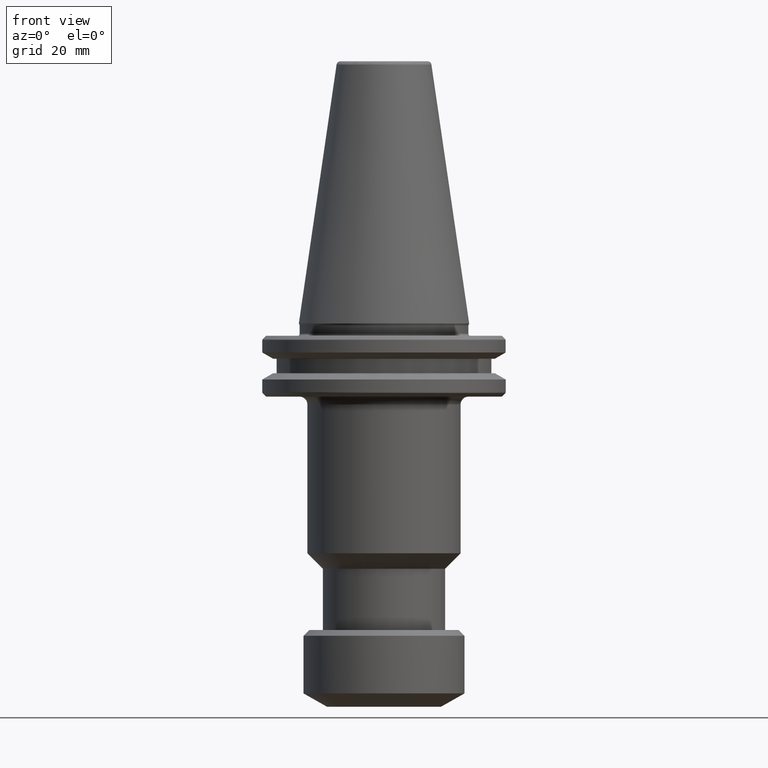
[diagram: clean part render]
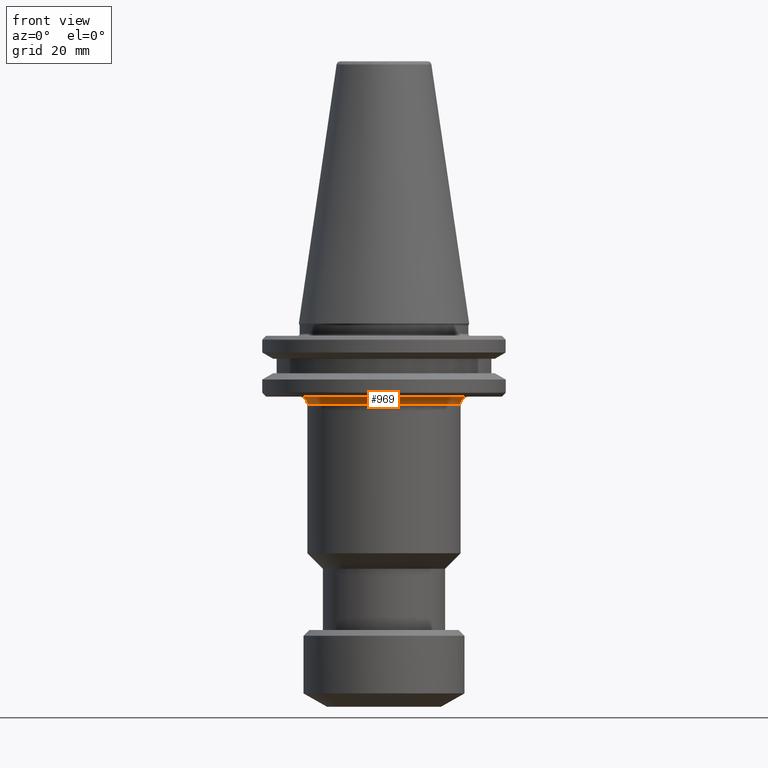
[diagram: same view with one face highlighted and labeled with its STEP entity id]
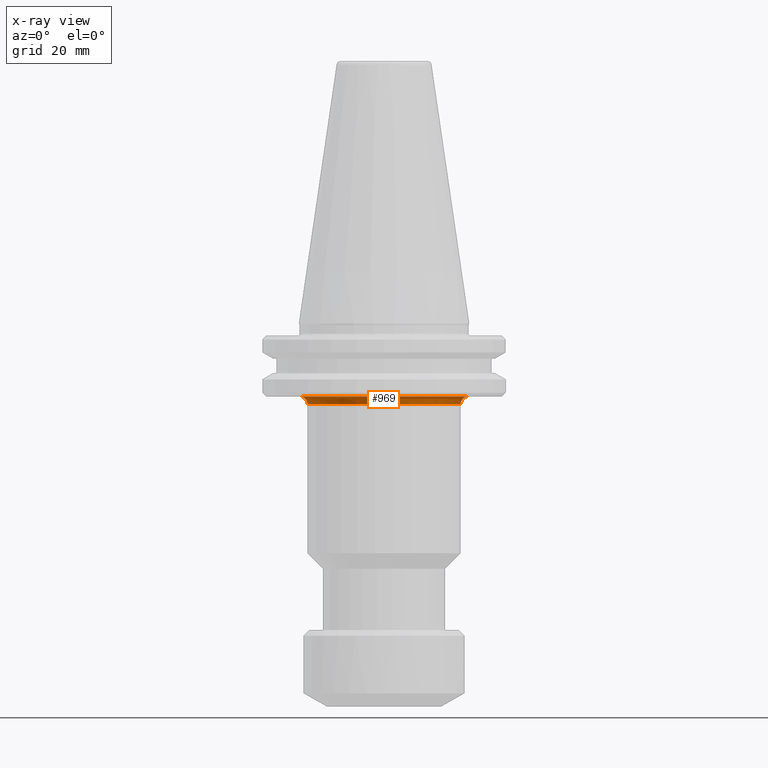
[diagram: x-ray of the same camera — body ghosted, the highlighted face saturated]
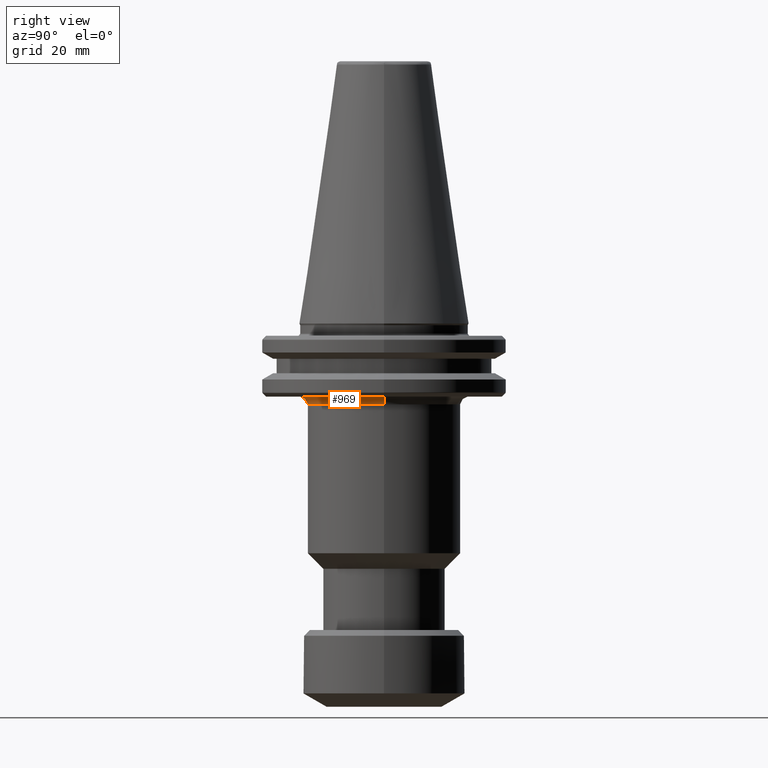
[diagram: same view with one face highlighted and labeled with its STEP entity id]
A machine part, front view. The second image highlights one B-rep face of the part: STEP entity #969.
The next image is the same camera in x-ray: the body ghosted, the highlighted face saturated — about 0% of this face is hidden behind the body in this view.
A second angle (right view) of the same face is appended — the face is thin or edge-on in the first view.
In plain terms, the highlighted face is a freeform B-spline surface patch.
Its self-contained STEP definition (entity closure, byte-faithful):
#5 = EDGE_LOOP ( 'NONE', ( #1045, #1409, #1155, #1324 ) ) ;
#39 = CARTESIAN_POINT ( 'NONE',  ( 22.02828427024736200, -44.05656854049474400, -19.09999999997586400 ) ) ;
#90 = CARTESIAN_POINT ( 'NONE',  ( -20.00000000000000000, -40.00000000000000000, -21.10000000000000100 ) ) ;
#91 = EDGE_CURVE ( 'NONE', #115, #121, #1064, .T. ) ;
#98 = CARTESIAN_POINT ( 'NONE',  ( -22.00942808941579500, -44.01885617883159100, -19.09999999999195800 ) ) ;
#102 = CARTESIAN_POINT ( 'NONE',  ( 21.95222492916193600, 0.0000000000000000000, -19.10057069578858000 ) ) ;
#115 = VERTEX_POINT ( 'NONE', #1562 ) ;
#121 = VERTEX_POINT ( 'NONE', #158 ) ;
#141 =( BOUNDED_SURFACE ( )  B_SPLINE_SURFACE ( 3, 3, ( 
 ( #1073, #39, #489, #1507 ),
 ( #829, #428, #588, #1221 ),
 ( #715, #448, #98, #303 ),
 ( #308, #1458, #1216, #726 ),
 ( #842, #1210, #1388, #363 ),
 ( #183, #1361, #1246, #1604 ),
 ( #495, #430, #90, #579 ) ),
 .UNSPECIFIED., .F., .F., .T. ) 
 B_SPLINE_SURFACE_WITH_KNOTS ( ( 4, 3, 4 ),
 ( 4, 4 ),
 ( 0.05440428619309657700, 0.06314145705598811500, 0.9368585433451420700 ),
 ( 0.0000000000000000000, 1.000000000000000000 ),
 .UNSPECIFIED. ) 
 GEOMETRIC_REPRESENTATION_ITEM ( )  RATIONAL_B_SPLINE_SURFACE ( (
 ( 0.9565783021300861000, 0.3188594340433620300, 0.3188594340433620300, 0.9565783021300861000),
 ( 0.9565783021300861000, 0.3188594340433620300, 0.3188594340433620300, 0.9565783021300861000),
 ( 0.9565783021300861000, 0.3188594340433620300, 0.3188594340433620300, 0.9565783021300861000),
 ( 0.9565783021300861000, 0.3188594340433620300, 0.3188594340433620300, 0.9565783021300861000),
 ( 0.7697947703221902400, 0.2565982567740640000, 0.2565982567740640000, 0.7697947703221902400),
 ( 0.7697947704079440800, 0.2565982568026480300, 0.2565982568026480300, 0.7697947704079440800),
 ( 0.9565783023873469800, 0.3188594341291150500, 0.3188594341291150500, 0.9565783023873469800) ) ) 
 REPRESENTATION_ITEM ( '' )  SURFACE ( )  );
#158 = CARTESIAN_POINT ( 'NONE',  ( -21.95222492916193600, 0.0000000000000000000, -19.10057069578858300 ) ) ;
#183 = CARTESIAN_POINT ( 'NONE',  ( 20.00000000000000000, 0.0000000000000000000, -19.92842712600000300 ) ) ;
#190 = CIRCLE ( 'NONE', #1348, 20.00000000000000000 ) ;
#250 = EDGE_CURVE ( 'NONE', #1028, #317, #190, .T. ) ;
#303 = CARTESIAN_POINT ( 'NONE',  ( -22.00942808941579500, 0.0000000000000000000, -19.09999999999195800 ) ) ;
#308 = CARTESIAN_POINT ( 'NONE',  ( 21.99999999900000700, 0.0000000000000000000, -19.10000000000000100 ) ) ;
#317 = VERTEX_POINT ( 'NONE', #1343 ) ;
#334 = CARTESIAN_POINT ( 'NONE',  ( -20.00000000000000000, 6.123233995736766300E-016, -21.10000000000000500 ) ) ;
#363 = CARTESIAN_POINT ( 'NONE',  ( -20.82842712400000100, 0.0000000000000000000, -19.10000000100000200 ) ) ;
#417 = DIRECTION ( 'NONE',  ( -0.0000000000000000000, -0.0000000000000000000, -1.000000000000000000 ) ) ;
#428 = CARTESIAN_POINT ( 'NONE',  ( 22.01885617983157700, -44.03771235966316800, -19.09999999998391500 ) ) ;
#430 = CARTESIAN_POINT ( 'NONE',  ( 20.00000000000000000, -40.00000000000000000, -21.10000000000000100 ) ) ;
#448 = CARTESIAN_POINT ( 'NONE',  ( 22.00942808941579500, -44.01885617883159100, -19.09999999999195800 ) ) ;
#455 = CARTESIAN_POINT ( 'NONE',  ( -21.95222492916193600, 0.0000000000000000000, -19.10057069578858300 ) ) ;
#489 = CARTESIAN_POINT ( 'NONE',  ( -22.02828427024736200, -44.05656854049474400, -19.09999999997586400 ) ) ;
#495 = CARTESIAN_POINT ( 'NONE',  ( 20.00000000000000000, 0.0000000000000000000, -21.10000000000000100 ) ) ;
#502 = AXIS2_PLACEMENT_3D ( 'NONE', #594, #1478, #720 ) ;
#531 = EDGE_CURVE ( 'NONE', #121, #317, #558, .T. ) ;
#558 =( BOUNDED_CURVE ( )  B_SPLINE_CURVE ( 3, ( #455, #1634, #627, #334 ),
 .UNSPECIFIED., .F., .F. ) 
 B_SPLINE_CURVE_WITH_KNOTS ( ( 4, 4 ),
 ( 0.07782887836482059500, 0.9368585433451411800 ),
 .UNSPECIFIED. ) 
 CURVE ( )  GEOMETRIC_REPRESENTATION_ITEM ( )  RATIONAL_B_SPLINE_CURVE ( ( 0.9473170033646294300, 0.7698475525910974900, 0.7729346522653359800, 0.9565783023873459800 ) ) 
 REPRESENTATION_ITEM ( '' )  );
#579 = CARTESIAN_POINT ( 'NONE',  ( -20.00000000000000000, 0.0000000000000000000, -21.10000000000000100 ) ) ;
#588 = CARTESIAN_POINT ( 'NONE',  ( -22.01885617983157700, -44.03771235966316800, -19.09999999998391500 ) ) ;
#594 = CARTESIAN_POINT ( 'NONE',  ( 0.0000000000000000000, 8.988438789245968400E-020, -19.10057069578858300 ) ) ;
#627 = CARTESIAN_POINT ( 'NONE',  ( -19.99999999999999300, 0.0000000000000000000, -19.95280084384703700 ) ) ;
#649 =( BOUNDED_CURVE ( )  B_SPLINE_CURVE ( 3, ( #762, #879, #1269, #102 ),
 .UNSPECIFIED., .F., .T. ) 
 B_SPLINE_CURVE_WITH_KNOTS ( ( 4, 4 ),
 ( 0.05440428619309588300, 0.9134339511734154100 ),
 .UNSPECIFIED. ) 
 CURVE ( )  GEOMETRIC_REPRESENTATION_ITEM ( )  RATIONAL_B_SPLINE_CURVE ( ( 0.9565783023873459800, 0.7729346522653360900, 0.7698475525910973800, 0.9473170033646286500 ) ) 
 REPRESENTATION_ITEM ( '' )  );
#715 = CARTESIAN_POINT ( 'NONE',  ( 22.00942808941579500, 0.0000000000000000000, -19.09999999999195800 ) ) ;
#720 = DIRECTION ( 'NONE',  ( 0.0000000000000000000, 1.000000000000000000, 1.580453445219911900E-016 ) ) ;
#726 = CARTESIAN_POINT ( 'NONE',  ( -21.99999999900000700, 0.0000000000000000000, -19.10000000000000100 ) ) ;
#762 = CARTESIAN_POINT ( 'NONE',  ( 20.00000000000000000, 0.0000000000000000000, -21.10000000000000100 ) ) ;
#829 = CARTESIAN_POINT ( 'NONE',  ( 22.01885617983158700, 0.0000000000000000000, -19.09999999998390400 ) ) ;
#842 = CARTESIAN_POINT ( 'NONE',  ( 20.82842712400000100, 0.0000000000000000000, -19.10000000100000200 ) ) ;
#879 = CARTESIAN_POINT ( 'NONE',  ( 19.99999999999999300, 0.0000000000000000000, -19.95280084384704000 ) ) ;
#969 = ADVANCED_FACE ( 'NONE', ( #1476 ), #141, .F. ) ;
#1028 = VERTEX_POINT ( 'NONE', #1067 ) ;
#1039 = CARTESIAN_POINT ( 'NONE',  ( 0.0000000000000000000, 0.0000000000000000000, -21.10000000000000100 ) ) ;
#1045 = ORIENTED_EDGE ( 'NONE', *, *, #1247, .T. ) ;
#1064 = CIRCLE ( 'NONE', #502, 21.95222492916176200 ) ;
#1067 = CARTESIAN_POINT ( 'NONE',  ( 20.00000000000000000, 0.0000000000000000000, -21.10000000000000100 ) ) ;
#1073 = CARTESIAN_POINT ( 'NONE',  ( 22.02828427024737200, 0.0000000000000000000, -19.09999999997585700 ) ) ;
#1155 = ORIENTED_EDGE ( 'NONE', *, *, #531, .T. ) ;
#1210 = CARTESIAN_POINT ( 'NONE',  ( 20.82842712400000100, -41.65685424800000200, -19.10000000100000500 ) ) ;
#1216 = CARTESIAN_POINT ( 'NONE',  ( -21.99999999900000000, -43.99999999800000700, -19.10000000000000100 ) ) ;
#1221 = CARTESIAN_POINT ( 'NONE',  ( -22.01885617983158700, 0.0000000000000000000, -19.09999999998390400 ) ) ;
#1246 = CARTESIAN_POINT ( 'NONE',  ( -20.00000000000000700, -40.00000000000001400, -19.92842712600000300 ) ) ;
#1247 = EDGE_CURVE ( 'NONE', #1028, #115, #649, .T. ) ;
#1269 = CARTESIAN_POINT ( 'NONE',  ( 20.80075415070679800, 0.0000000000000000000, -19.12808434615595500 ) ) ;
#1324 = ORIENTED_EDGE ( 'NONE', *, *, #250, .F. ) ;
#1343 = CARTESIAN_POINT ( 'NONE',  ( -20.00000000000000000, 6.123233995736766300E-016, -21.10000000000000500 ) ) ;
#1348 = AXIS2_PLACEMENT_3D ( 'NONE', #1039, #417, #1554 ) ;
#1361 = CARTESIAN_POINT ( 'NONE',  ( 20.00000000000000700, -40.00000000000001400, -19.92842712600000300 ) ) ;
#1388 = CARTESIAN_POINT ( 'NONE',  ( -20.82842712400000100, -41.65685424800000200, -19.10000000100000500 ) ) ;
#1409 = ORIENTED_EDGE ( 'NONE', *, *, #91, .T. ) ;
#1458 = CARTESIAN_POINT ( 'NONE',  ( 21.99999999900000000, -43.99999999800000700, -19.10000000000000100 ) ) ;
#1476 = FACE_OUTER_BOUND ( 'NONE', #5, .T. ) ;
#1478 = DIRECTION ( 'NONE',  ( 0.0000000000000000000, 1.574996449741500200E-016, -1.000000000000000000 ) ) ;
#1507 = CARTESIAN_POINT ( 'NONE',  ( -22.02828427024737200, 0.0000000000000000000, -19.09999999997585700 ) ) ;
#1554 = DIRECTION ( 'NONE',  ( -1.000000000000000000, 0.0000000000000000000, 0.0000000000000000000 ) ) ;
#1562 = CARTESIAN_POINT ( 'NONE',  ( 21.95222492916193600, 0.0000000000000000000, -19.10057069578858000 ) ) ;
#1604 = CARTESIAN_POINT ( 'NONE',  ( -20.00000000000000000, 0.0000000000000000000, -19.92842712600000300 ) ) ;
#1634 = CARTESIAN_POINT ( 'NONE',  ( -20.80075415070678300, 0.0000000000000000000, -19.12808434615594800 ) ) ;